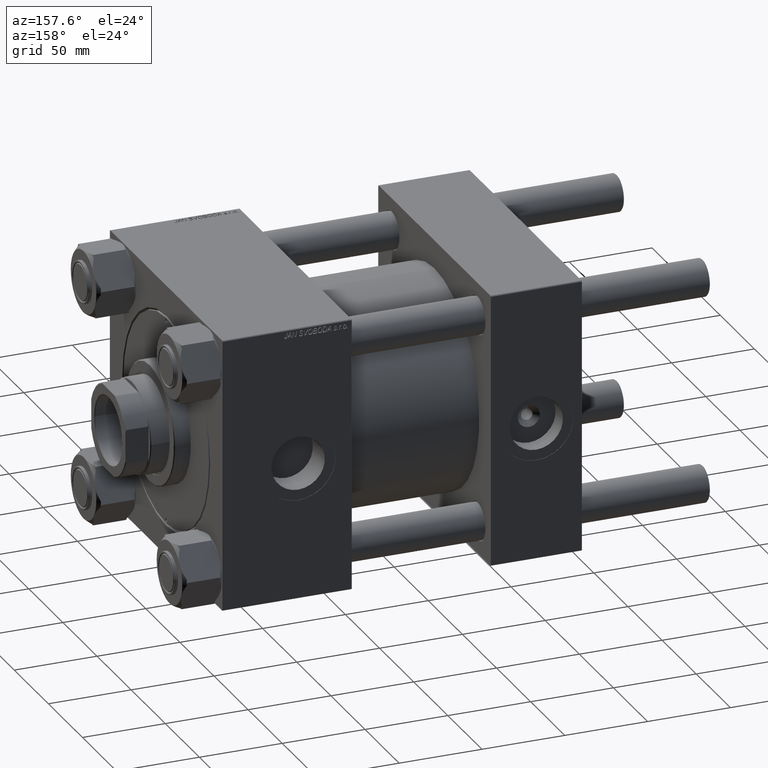
[diagram: clean part render]
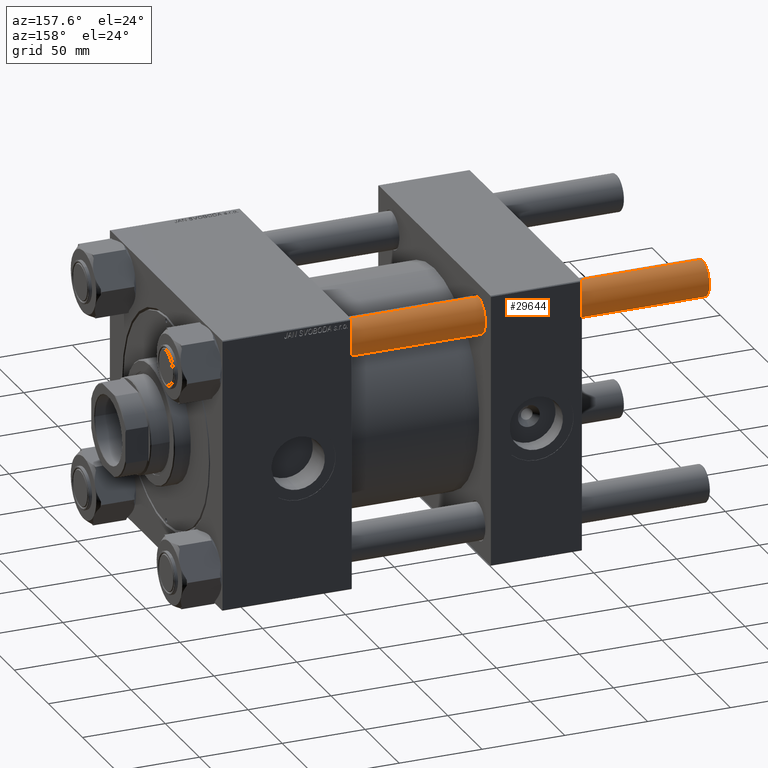
[diagram: same view with one face highlighted and labeled with its STEP entity id]
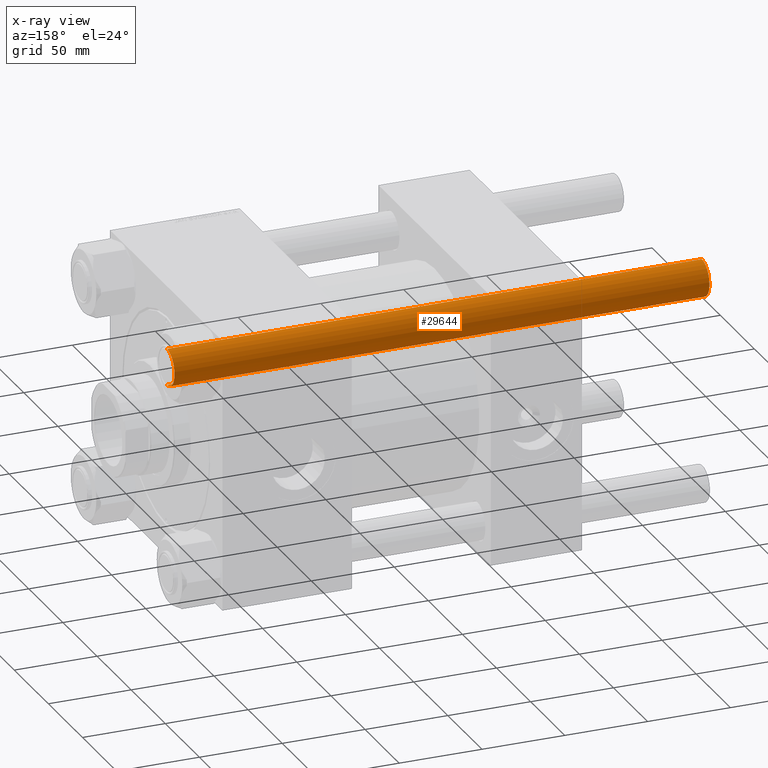
[diagram: x-ray of the same camera — body ghosted, the highlighted face saturated]
A machine part, auxiliary view. The second image highlights one B-rep face of the part: STEP entity #29644.
The next image is the same camera in x-ray: the body ghosted, the highlighted face saturated — about 0% of this face is hidden behind the body in this view.
In plain terms, the highlighted cylindrical surface (edge-blend (fillet) strip) has radius 11 mm, axis along (-1, -0, -0).
Its self-contained STEP definition (entity closure, byte-faithful):
#792 = DIRECTION ( 'NONE',  ( -0.000000000000000000, -0.000000000000000000, -1.000000000000000000 ) ) ;
#1861 = EDGE_LOOP ( 'NONE', ( #35760, #3143, #22484, #1965 ) ) ;
#1965 = ORIENTED_EDGE ( 'NONE', *, *, #27342, .F. ) ;
#3143 = ORIENTED_EDGE ( 'NONE', *, *, #33461, .T. ) ;
#7252 = CARTESIAN_POINT ( 'NONE',  ( 11.00000000000000000, 1.347111479062088405E-15, 324.0000000000000000 ) ) ;
#8137 = CARTESIAN_POINT ( 'NONE',  ( 11.00000000000000000, 1.347111479062088405E-15, 323.5000000000000000 ) ) ;
#8692 = CIRCLE ( 'NONE', #43716, 11.00000000000000000 ) ;
#9257 = EDGE_CURVE ( 'NONE', #24760, #49655, #35270, .T. ) ;
#10790 = CARTESIAN_POINT ( 'NONE',  ( 11.00000000000000000, 1.347111479062088405E-15, 0.5000000000000559552 ) ) ;
#11476 = CARTESIAN_POINT ( 'NONE',  ( -11.00000000000000000, 0.000000000000000000, 0.5000000000000559552 ) ) ;
#14157 = CARTESIAN_POINT ( 'NONE',  ( 0.000000000000000000, 0.000000000000000000, 323.5000000000000000 ) ) ;
#18126 = AXIS2_PLACEMENT_3D ( 'NONE', #24604, #32531, #21015 ) ;
#18213 = DIRECTION ( 'NONE',  ( 0.000000000000000000, 0.000000000000000000, -1.000000000000000000 ) ) ;
#20912 = CARTESIAN_POINT ( 'NONE',  ( -11.00000000000000000, 0.000000000000000000, 324.0000000000000000 ) ) ;
#21015 = DIRECTION ( 'NONE',  ( 1.000000000000000000, 0.000000000000000000, 0.000000000000000000 ) ) ;
#21841 = EDGE_CURVE ( 'NONE', #46777, #44905, #8692, .T. ) ;
#22484 = ORIENTED_EDGE ( 'NONE', *, *, #9257, .T. ) ;
#24499 = CARTESIAN_POINT ( 'NONE',  ( 0.000000000000000000, 0.000000000000000000, 324.0000000000000000 ) ) ;
#24604 = CARTESIAN_POINT ( 'NONE',  ( 0.000000000000000000, 0.000000000000000000, 0.5000000000000559552 ) ) ;
#24760 = VERTEX_POINT ( 'NONE', #10790 ) ;
#26637 = LINE ( 'NONE', #7252, #40775 ) ;
#26779 = VECTOR ( 'NONE', #792, 1000.000000000000000 ) ;
#27342 = EDGE_CURVE ( 'NONE', #46777, #49655, #32675, .T. ) ;
#28347 = DIRECTION ( 'NONE',  ( -0.000000000000000000, -0.000000000000000000, -1.000000000000000000 ) ) ;
#28788 = CARTESIAN_POINT ( 'NONE',  ( -11.00000000000000000, 0.000000000000000000, 323.5000000000000000 ) ) ;
#29644 = ADVANCED_FACE ( 'NONE', ( #39819 ), #32183, .T. ) ;
#32183 = CYLINDRICAL_SURFACE ( 'NONE', #47248, 11.00000000000000000 ) ;
#32531 = DIRECTION ( 'NONE',  ( -0.000000000000000000, -0.000000000000000000, 1.000000000000000000 ) ) ;
#32675 = LINE ( 'NONE', #20912, #26779 ) ;
#33461 = EDGE_CURVE ( 'NONE', #44905, #24760, #26637, .T. ) ;
#33932 = DIRECTION ( 'NONE',  ( -1.000000000000000000, 0.000000000000000000, 0.000000000000000000 ) ) ;
#35270 = CIRCLE ( 'NONE', #18126, 11.00000000000000000 ) ;
#35760 = ORIENTED_EDGE ( 'NONE', *, *, #21841, .T. ) ;
#38352 = DIRECTION ( 'NONE',  ( -0.000000000000000000, -0.000000000000000000, -1.000000000000000000 ) ) ;
#38371 = DIRECTION ( 'NONE',  ( 1.000000000000000000, 0.000000000000000000, 0.000000000000000000 ) ) ;
#39819 = FACE_OUTER_BOUND ( 'NONE', #1861, .T. ) ;
#40775 = VECTOR ( 'NONE', #38352, 1000.000000000000000 ) ;
#43716 = AXIS2_PLACEMENT_3D ( 'NONE', #14157, #18213, #38371 ) ;
#44905 = VERTEX_POINT ( 'NONE', #8137 ) ;
#46777 = VERTEX_POINT ( 'NONE', #28788 ) ;
#47248 = AXIS2_PLACEMENT_3D ( 'NONE', #24499, #28347, #33932 ) ;
#49655 = VERTEX_POINT ( 'NONE', #11476 ) ;